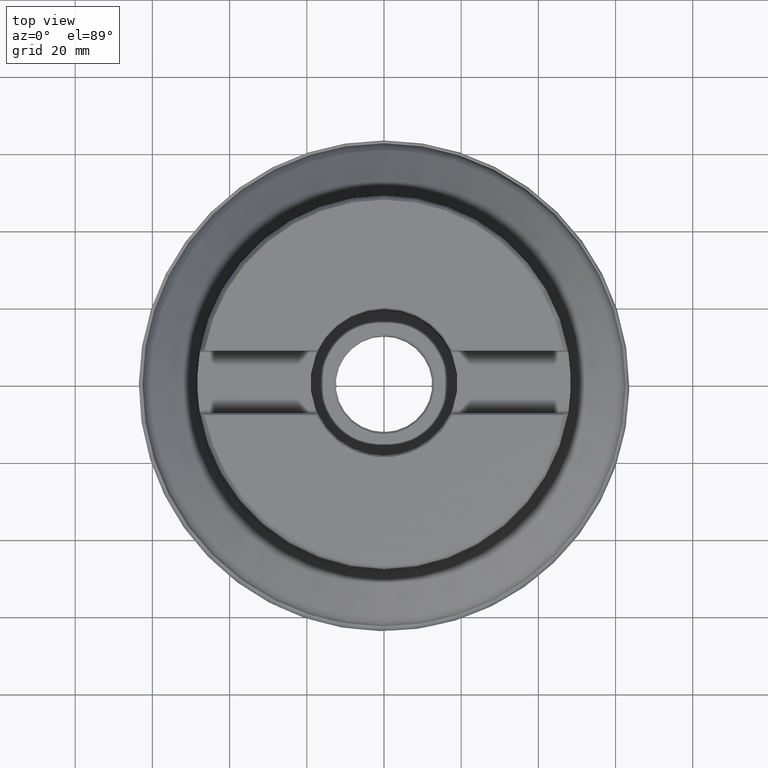
[diagram: clean part render]
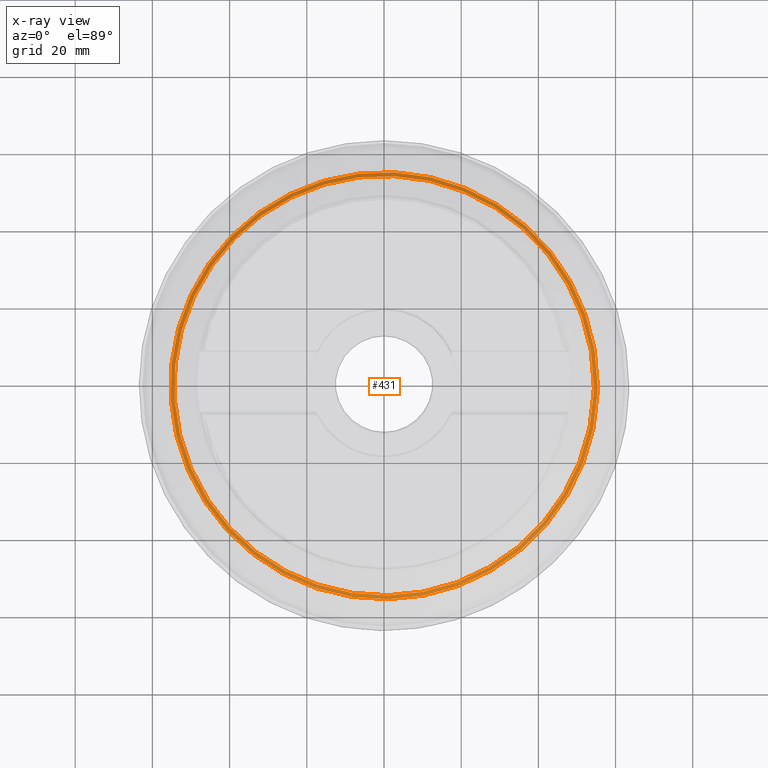
[diagram: x-ray — body ghosted, one internal face saturated and labeled with its STEP entity id]
A machine part, top view, then the same camera in x-ray: the body is ghosted and one INTERNAL B-rep face — a face not visible from any outside direction — is saturated and labeled: STEP entity #431.
In plain terms, the highlighted face is a SurfaceOfRevolution surface.
Its self-contained STEP definition (entity closure, byte-faithful):
#126=SURFACE_OF_REVOLUTION('',#1189,#150);
#150=AXIS1_PLACEMENT('',#2457,#1602);
#264=FACE_BOUND('',#592,.T.);
#265=FACE_BOUND('',#593,.T.);
#431=ADVANCED_FACE('',(#264,#265),#126,.F.);
#592=EDGE_LOOP('',(#897));
#593=EDGE_LOOP('',(#898));
#665=CIRCLE('',#1312,55.3454661846658);
#666=CIRCLE('',#1313,54.3443986077416);
#897=ORIENTED_EDGE('',*,*,#1119,.T.);
#898=ORIENTED_EDGE('',*,*,#1120,.F.);
#1000=VERTEX_POINT('',#2441);
#1001=VERTEX_POINT('',#2450);
#1119=EDGE_CURVE('',#1000,#1000,#665,.T.);
#1120=EDGE_CURVE('',#1001,#1001,#666,.T.);
#1189=B_SPLINE_CURVE_WITH_KNOTS('',5,(#2451,#2452,#2453,#2454,#2455,#2456),
 .UNSPECIFIED.,.F.,.F.,(6,6),(0.,1.),.UNSPECIFIED.);
#1312=AXIS2_PLACEMENT_3D('',#2440,#1597,#1598);
#1313=AXIS2_PLACEMENT_3D('',#2449,#1600,#1601);
#1597=DIRECTION('',(0.,0.,1.));
#1598=DIRECTION('',(1.,0.,0.));
#1600=DIRECTION('',(0.,0.,1.));
#1601=DIRECTION('',(1.,0.,0.));
#1602=DIRECTION('',(0.,0.,1.));
#2440=CARTESIAN_POINT('',(0.,0.,3.39548763052598));
#2441=CARTESIAN_POINT('',(55.3454661846658,0.,3.39548763052598));
#2449=CARTESIAN_POINT('',(0.,0.,4.02374847217826));
#2450=CARTESIAN_POINT('',(54.3443986077416,0.,4.02374847217826));
#2451=CARTESIAN_POINT('',(54.0118533785904,-6.00277881511842,4.02374845507337));
#2452=CARTESIAN_POINT('',(54.2124041964532,-6.02266103673875,3.89958237928199));
#2453=CARTESIAN_POINT('',(54.4128758100538,-6.03795511672755,3.77455299151197));
#2454=CARTESIAN_POINT('',(54.6131959342593,-6.04864193482807,3.64877514649022));
#2455=CARTESIAN_POINT('',(54.813298397041,-6.05470517787223,3.52237498806462));
#2456=CARTESIAN_POINT('',(55.0131247711695,-6.0561316126493,3.39548763052598));
#2457=CARTESIAN_POINT('',(0.,0.,0.));